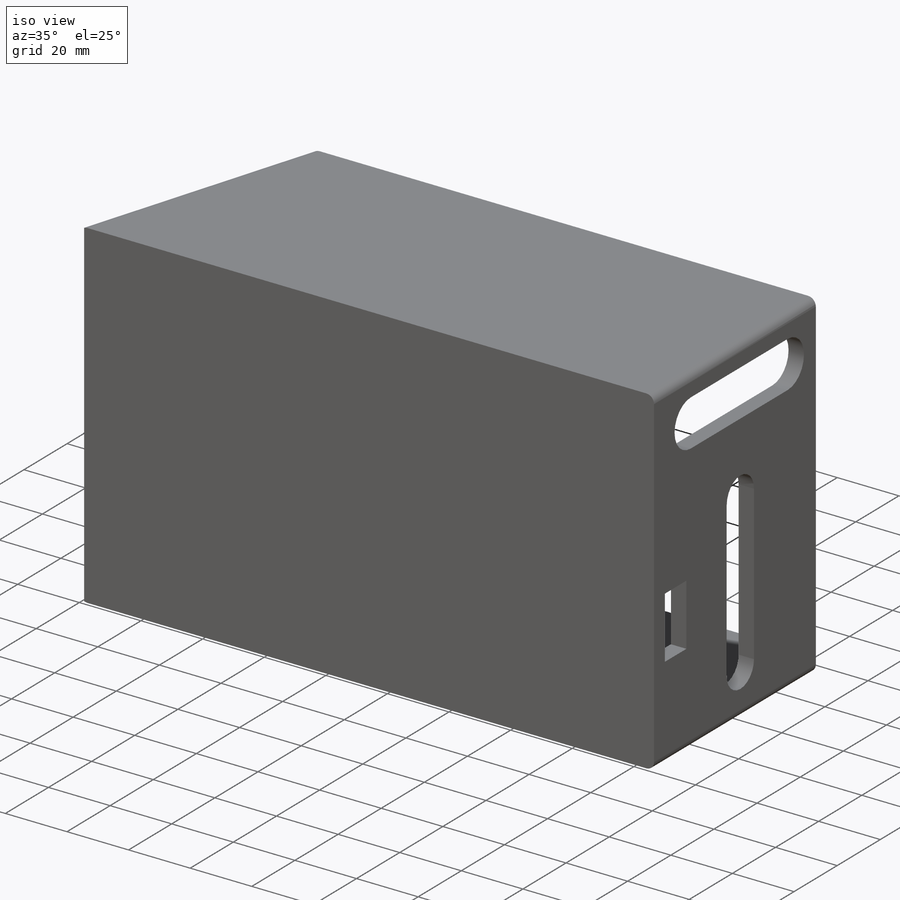
[diagram: iso view]
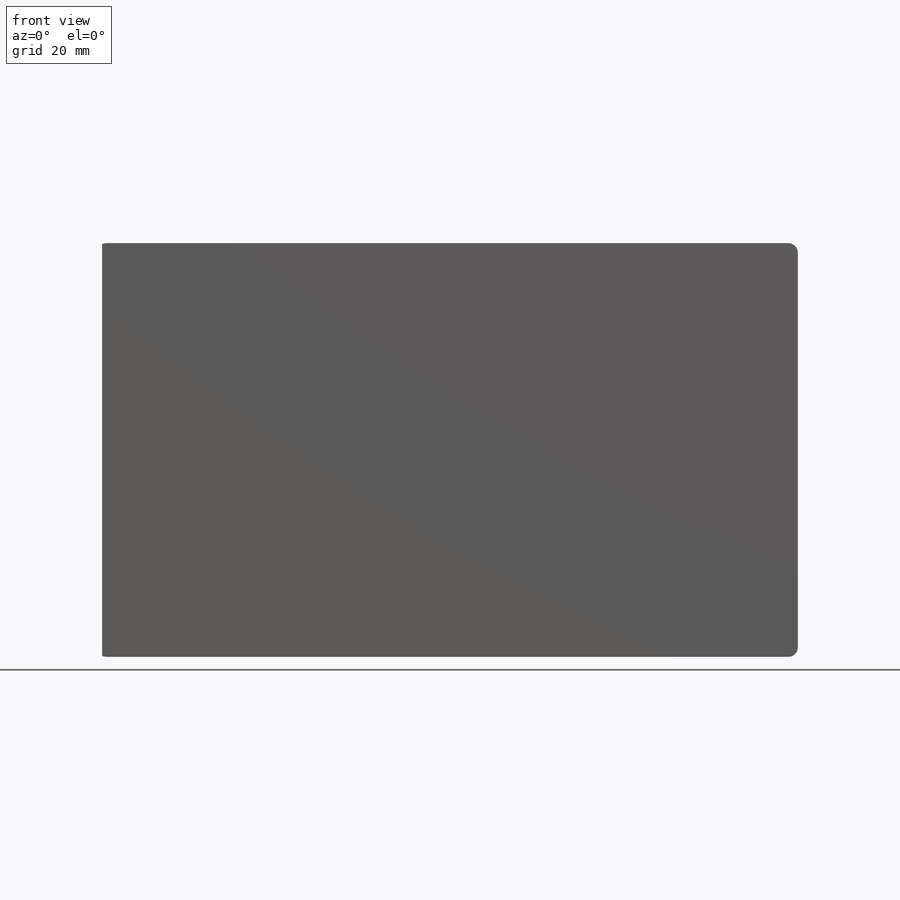
[diagram: front view]
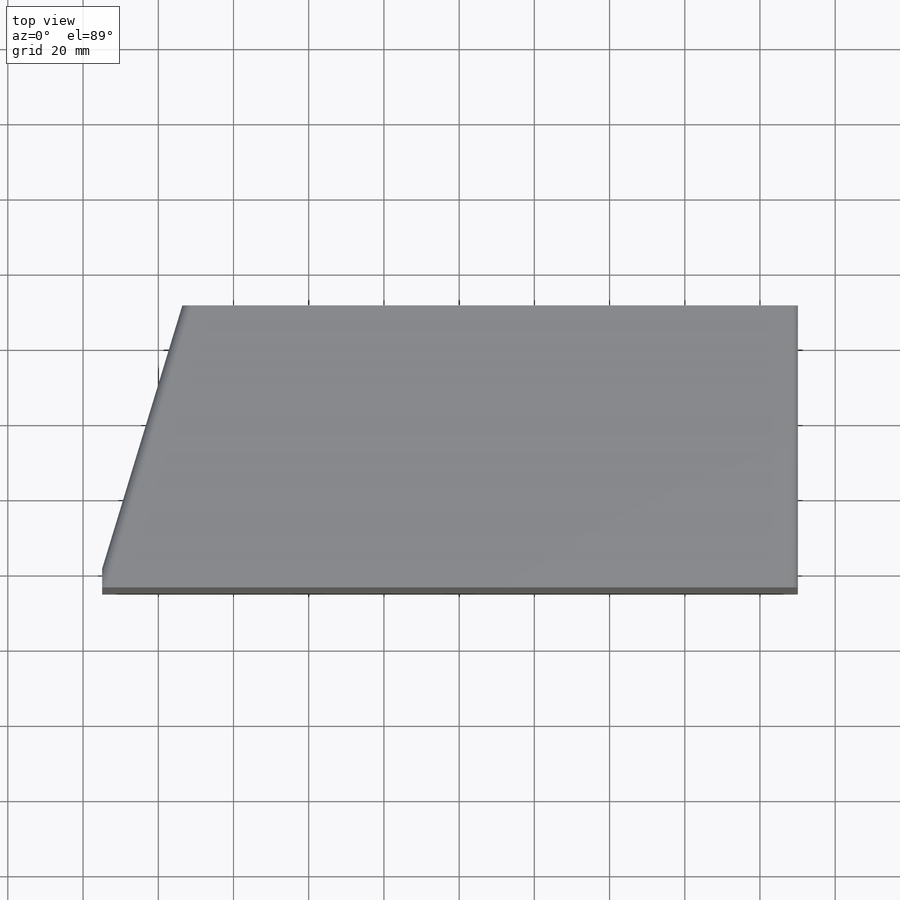
[diagram: top view]
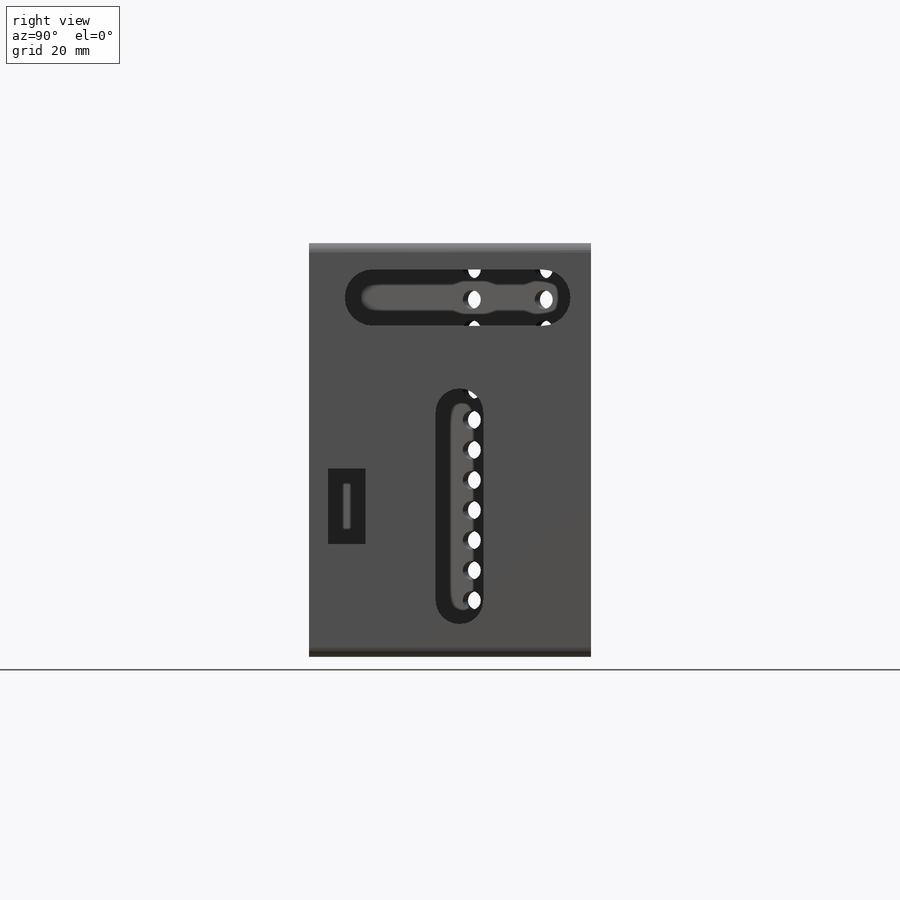
[diagram: right view]
SOLIDWORKS PART (.sldprt)
format: sldprt  version: not decoded by parser v0  size: 396,288 bytes
history: native  units: mm
features: sketch x10, extrude x5, cut_extrude x4, fillet x4, plane x3, material x1 (+10 scaffold rows collapsed)
feature tree (37):
  scaffold x10  (default folders/planes/origin — collapsed)
  material  "Matériau <non spécifié>"
  plane  "Plan de face"
  plane  "Plan de dessus"
  plane  "Plan de droite"
  sketch  "Esquisse1"  dims[D1=110.0mm D2=185.0mm]
  extrude  "Boss.-Extru.1"  Depth=5mm
  sketch  "Esquisse3"  dims[D1=70.0mm D2=5.0mm]
  extrude  "Boss.-Extru.2"  Depth=110mm
  sketch  "Esquisse4"
  extrude  "Boss.-Extru.3"  Depth=5mm
  sketch  "Esquisse7"
  extrude  "Boss.-Extru.4"  Depth=5mm
  sketch  "Esquisse8"  dims[c1.D8=7.5mm c1.D1=35.0mm c1.D2=20.0mm c1.D3=10.0mm c1.D4=45.0mm c1.D5=15.0mm c1.D6=17.0mm c2.D2=50.0mm c2.D7=12.0mm]
  sketch  "Esquisse9"
  extrude  "Boss.-Extru.6"  Depth=5mm
  sketch  "Esquisse10"  dims[c1.D3=5.0mm c1.D6=5.0mm c1.D1=18.0mm c1.D2=10.0mm c2.D3=10.0mm c2.D4=7.0mm c2.D6=7.0mm c2.D5=13.0]
  cut_extrude  "Enlèv. mat.-Extru.1"  Depth=5mm
  sketch  "Esquisse13"  dims[D1=2.0mm D2=2.0mm D3=2.0mm D4=2.0mm D5=2.0mm D6=2.0mm D7=2.0mm D8=2.0mm D9=2.0mm D10=2.0mm D11=2.0mm D12=2.0mm]
  cut_extrude  "Enlèv. mat.-Extru.2"  Depth=10mm
  sketch  "Esquisse14"  dims[D1=5.0mm D2=10.0mm D3=10.0mm]
  sketch  "Esquisse15"  dims[D1=10.0mm D2=20.0mm D3=5.0mm D4=30.0mm]
  cut_extrude  "Enlèv. mat.-Extru.3"  Depth=10mm
  cut_extrude  "Enlèv. mat.-Extru.4"  Depth=10mm
  fillet  "Congé2"  Radius=2.5mm
  fillet  "Congé3"  Radius=2.5mm
  fillet  "Congé4"  Radius=2.5mm
  fillet  "Congé5"  Radius=2.5mm
decode coverage: 20 of 23 modeling features carry decoded parameters
note: suppression state not decoded; provenance and decode notes live in map.json
